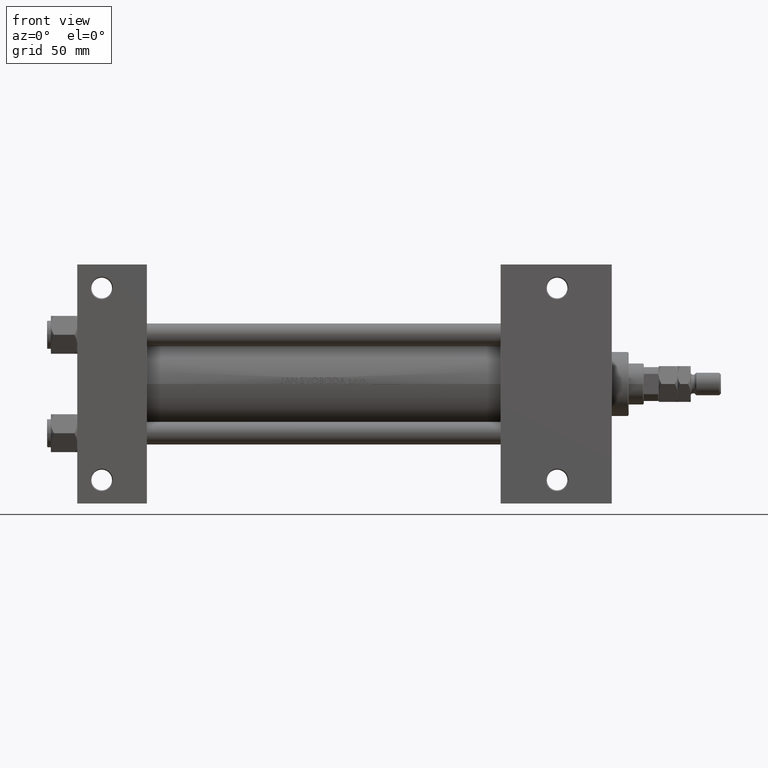
[diagram: clean part render]
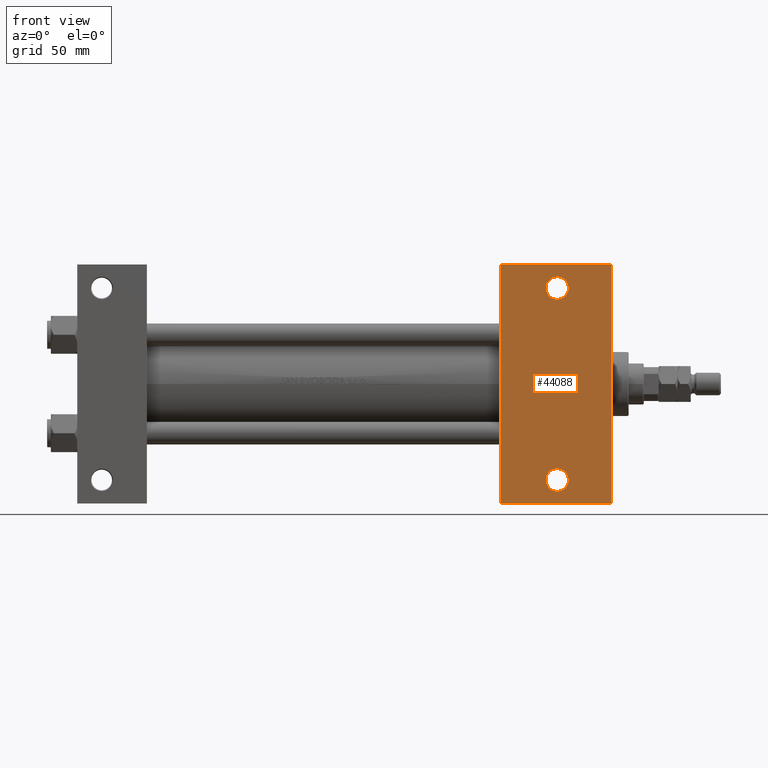
[diagram: same view with one face highlighted and labeled with its STEP entity id]
A machine part, front view. The second image highlights one B-rep face of the part: STEP entity #44088.
In plain terms, the highlighted planar face has unit normal (0, -1, 0).
Its self-contained STEP definition (entity closure, byte-faithful):
#44 = DIRECTION ( 'NONE',  ( -1.000000000000000000, 0.000000000000000000, 0.000000000000000000 ) ) ;
#108 = ORIENTED_EDGE ( 'NONE', *, *, #42063, .T. ) ;
#207 = PLANE ( 'NONE',  #21176 ) ;
#1053 = CARTESIAN_POINT ( 'NONE',  ( 284.0000000000000568, 37.50000000000000000, -37.50000000000000000 ) ) ;
#1293 = DIRECTION ( 'NONE',  ( 0.000000000000000000, -1.000000000000000000, 0.000000000000000000 ) ) ;
#1327 = DIRECTION ( 'NONE',  ( 0.000000000000000000, -1.000000000000000000, 0.000000000000000000 ) ) ;
#2787 = EDGE_CURVE ( 'NONE', #7024, #47653, #24236, .T. ) ;
#4551 = CARTESIAN_POINT ( 'NONE',  ( 255.0000000000000000, -51.00000000000000000, -37.50000000000000000 ) ) ;
#4895 = ORIENTED_EDGE ( 'NONE', *, *, #44377, .T. ) ;
#5217 = EDGE_LOOP ( 'NONE', ( #9821, #12621 ) ) ;
#5348 = EDGE_CURVE ( 'NONE', #30908, #15412, #50464, .T. ) ;
#5438 = ORIENTED_EDGE ( 'NONE', *, *, #41947, .F. ) ;
#6159 = FACE_BOUND ( 'NONE', #5217, .T. ) ;
#7024 = VERTEX_POINT ( 'NONE', #21217 ) ;
#7437 = CIRCLE ( 'NONE', #36058, 5.999499999999990507 ) ;
#9821 = ORIENTED_EDGE ( 'NONE', *, *, #5348, .T. ) ;
#11146 = VERTEX_POINT ( 'NONE', #25855 ) ;
#11172 = VECTOR ( 'NONE', #31645, 1000.000000000000000 ) ;
#12246 = CIRCLE ( 'NONE', #39200, 5.999499999999990507 ) ;
#12621 = ORIENTED_EDGE ( 'NONE', *, *, #21431, .T. ) ;
#14866 = DIRECTION ( 'NONE',  ( -1.000000000000000000, 0.000000000000000000, -0.000000000000000000 ) ) ;
#15412 = VERTEX_POINT ( 'NONE', #43609 ) ;
#16994 = CARTESIAN_POINT ( 'NONE',  ( 255.0000000000000000, 51.00000000000000000, -37.50000000000000000 ) ) ;
#17425 = CARTESIAN_POINT ( 'NONE',  ( 225.0000000000000000, -63.50000000000002842, -37.50000000000000000 ) ) ;
#17662 = LINE ( 'NONE', #1053, #33598 ) ;
#17933 = CARTESIAN_POINT ( 'NONE',  ( 260.9995000000000118, 51.00000000000000000, -37.50000000000000000 ) ) ;
#18357 = VERTEX_POINT ( 'NONE', #31411 ) ;
#18446 = FACE_BOUND ( 'NONE', #32588, .T. ) ;
#18933 = DIRECTION ( 'NONE',  ( -0.000000000000000000, -0.000000000000000000, 1.000000000000000000 ) ) ;
#20527 = CARTESIAN_POINT ( 'NONE',  ( 255.0000000000000000, -51.00000000000000000, -37.50000000000000000 ) ) ;
#20664 = EDGE_CURVE ( 'NONE', #47653, #18357, #17662, .T. ) ;
#21069 = VECTOR ( 'NONE', #1327, 1000.000000000000000 ) ;
#21176 = AXIS2_PLACEMENT_3D ( 'NONE', #34312, #49889, #14866 ) ;
#21217 = CARTESIAN_POINT ( 'NONE',  ( 225.0000000000000284, 63.50000000000000000, -37.50000000000000000 ) ) ;
#21431 = EDGE_CURVE ( 'NONE', #15412, #30908, #7437, .T. ) ;
#21596 = VERTEX_POINT ( 'NONE', #17425 ) ;
#23553 = DIRECTION ( 'NONE',  ( -1.000000000000000000, 0.000000000000000000, 0.000000000000000000 ) ) ;
#24236 = LINE ( 'NONE', #42888, #11172 ) ;
#24274 = DIRECTION ( 'NONE',  ( -0.000000000000000000, -0.000000000000000000, 1.000000000000000000 ) ) ;
#24392 = LINE ( 'NONE', #35645, #21069 ) ;
#25159 = CIRCLE ( 'NONE', #33322, 5.999499999999990507 ) ;
#25855 = CARTESIAN_POINT ( 'NONE',  ( 249.0005000000000166, 51.00000000000000000, -37.50000000000000000 ) ) ;
#27378 = CARTESIAN_POINT ( 'NONE',  ( 255.0000000000000000, 51.00000000000000000, -37.50000000000000000 ) ) ;
#28291 = LINE ( 'NONE', #43872, #29351 ) ;
#28349 = DIRECTION ( 'NONE',  ( -1.000000000000000000, 0.000000000000000000, 0.000000000000000000 ) ) ;
#28505 = DIRECTION ( 'NONE',  ( -1.000000000000000000, 0.000000000000000000, 0.000000000000000000 ) ) ;
#29351 = VECTOR ( 'NONE', #40046, 1000.000000000000000 ) ;
#30908 = VERTEX_POINT ( 'NONE', #32975 ) ;
#31411 = CARTESIAN_POINT ( 'NONE',  ( 284.0000000000000568, -63.50000000000002842, -37.50000000000000000 ) ) ;
#31645 = DIRECTION ( 'NONE',  ( 1.000000000000000000, -4.704334850106595794E-16, 0.000000000000000000 ) ) ;
#32280 = DIRECTION ( 'NONE',  ( -0.000000000000000000, -0.000000000000000000, 1.000000000000000000 ) ) ;
#32588 = EDGE_LOOP ( 'NONE', ( #46280, #108 ) ) ;
#32599 = DIRECTION ( 'NONE',  ( -0.000000000000000000, -0.000000000000000000, 1.000000000000000000 ) ) ;
#32975 = CARTESIAN_POINT ( 'NONE',  ( 249.0005000000000166, -51.00000000000000000, -37.50000000000000000 ) ) ;
#33322 = AXIS2_PLACEMENT_3D ( 'NONE', #27378, #18933, #23553 ) ;
#33598 = VECTOR ( 'NONE', #1293, 1000.000000000000000 ) ;
#34312 = CARTESIAN_POINT ( 'NONE',  ( 284.0000000000000568, 37.50000000000000000, -37.50000000000000000 ) ) ;
#35645 = CARTESIAN_POINT ( 'NONE',  ( 225.0000000000000000, 37.50000000000000000, -37.50000000000000000 ) ) ;
#36058 = AXIS2_PLACEMENT_3D ( 'NONE', #20527, #32280, #44 ) ;
#36422 = ORIENTED_EDGE ( 'NONE', *, *, #20664, .T. ) ;
#39200 = AXIS2_PLACEMENT_3D ( 'NONE', #16994, #32599, #28505 ) ;
#40046 = DIRECTION ( 'NONE',  ( -1.000000000000000000, -0.000000000000000000, -0.000000000000000000 ) ) ;
#40238 = VERTEX_POINT ( 'NONE', #17933 ) ;
#41947 = EDGE_CURVE ( 'NONE', #7024, #21596, #24392, .T. ) ;
#42063 = EDGE_CURVE ( 'NONE', #40238, #11146, #25159, .T. ) ;
#42888 = CARTESIAN_POINT ( 'NONE',  ( 225.0000000000000284, 63.50000000000000000, -37.50000000000000000 ) ) ;
#43095 = AXIS2_PLACEMENT_3D ( 'NONE', #4551, #24274, #28349 ) ;
#43609 = CARTESIAN_POINT ( 'NONE',  ( 260.9995000000000118, -51.00000000000000000, -37.50000000000000000 ) ) ;
#43872 = CARTESIAN_POINT ( 'NONE',  ( 225.0000000000000000, -63.50000000000002842, -37.50000000000000000 ) ) ;
#44088 = ADVANCED_FACE ( 'NONE', ( #18446, #6159, #49628 ), #207, .T. ) ;
#44377 = EDGE_CURVE ( 'NONE', #18357, #21596, #28291, .T. ) ;
#45620 = ORIENTED_EDGE ( 'NONE', *, *, #2787, .T. ) ;
#46280 = ORIENTED_EDGE ( 'NONE', *, *, #49790, .T. ) ;
#47635 = EDGE_LOOP ( 'NONE', ( #5438, #45620, #36422, #4895 ) ) ;
#47653 = VERTEX_POINT ( 'NONE', #47696 ) ;
#47696 = CARTESIAN_POINT ( 'NONE',  ( 284.0000000000000568, 63.49999999999997158, -37.50000000000000000 ) ) ;
#49628 = FACE_OUTER_BOUND ( 'NONE', #47635, .T. ) ;
#49790 = EDGE_CURVE ( 'NONE', #11146, #40238, #12246, .T. ) ;
#49889 = DIRECTION ( 'NONE',  ( 0.000000000000000000, 0.000000000000000000, -1.000000000000000000 ) ) ;
#50464 = CIRCLE ( 'NONE', #43095, 5.999499999999990507 ) ;